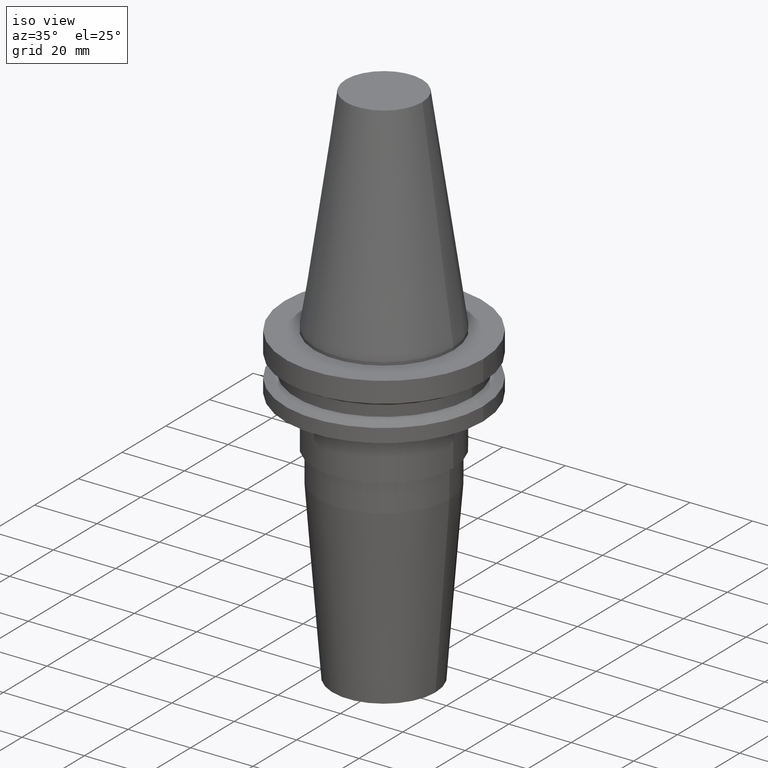
[diagram: clean part render]
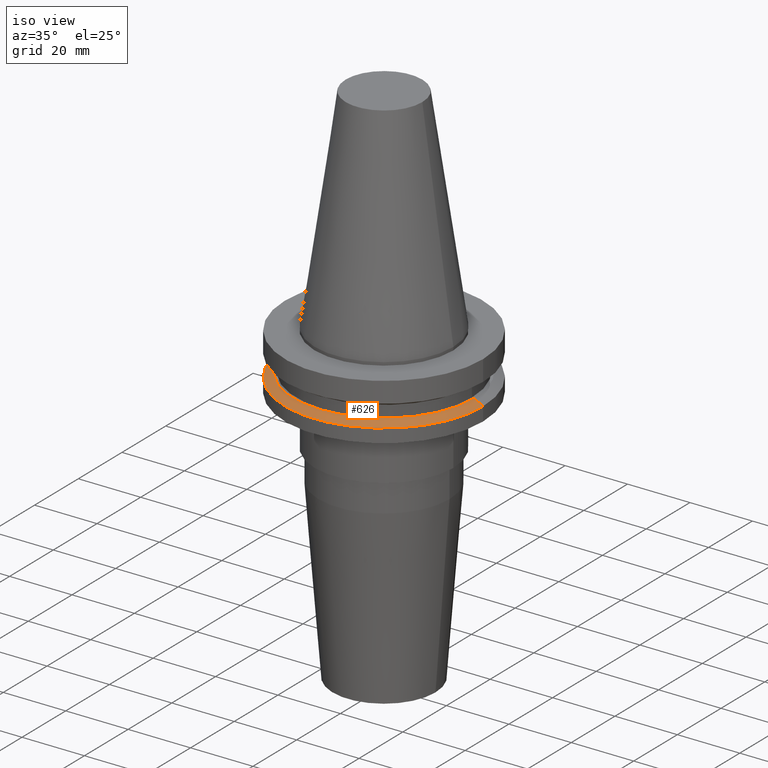
[diagram: same view with one face highlighted and labeled with its STEP entity id]
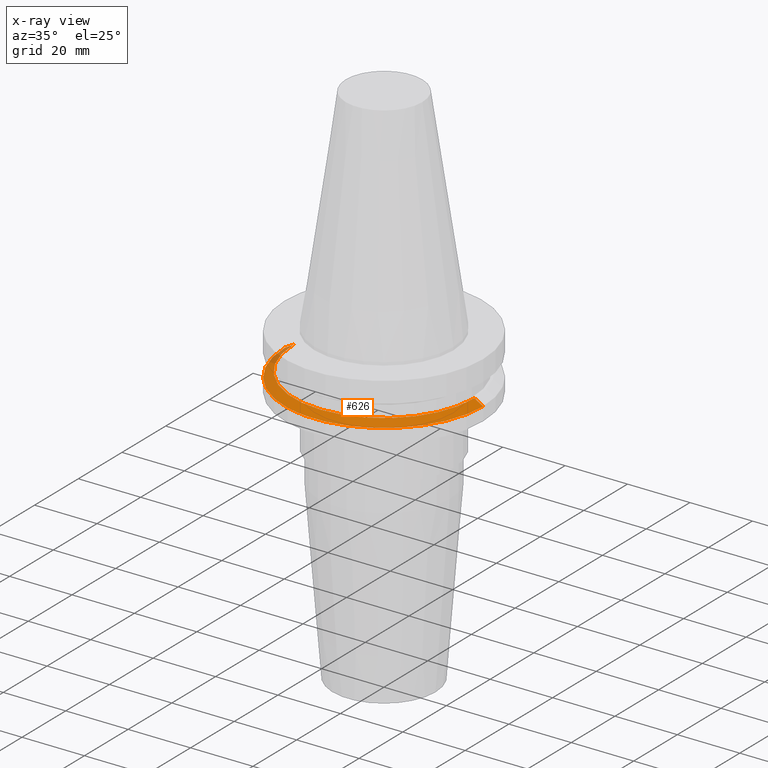
[diagram: x-ray of the same camera — body ghosted, the highlighted face saturated]
A machine part, iso view. The second image highlights one B-rep face of the part: STEP entity #626.
The next image is the same camera in x-ray: the body ghosted, the highlighted face saturated — about 4% of this face is hidden behind the body in this view.
In plain terms, the highlighted conical surface has half-angle 60 deg.
Its self-contained STEP definition (entity closure, byte-faithful):
#10 = DIRECTION ( 'NONE',  ( -0.000000000000000000, -0.000000000000000000, 1.000000000000000000 ) ) ;
#49 = EDGE_CURVE ( 'NONE', #105, #676, #651, .T. ) ;
#63 = CARTESIAN_POINT ( 'NONE',  ( 0.000000000000000000, 0.000000000000000000, -14.65472339340266572 ) ) ;
#89 = ORIENTED_EDGE ( 'NONE', *, *, #361, .F. ) ;
#105 = VERTEX_POINT ( 'NONE', #246 ) ;
#130 = CARTESIAN_POINT ( 'NONE',  ( 31.75000000000000000, 0.000000000000000000, -14.65472339340266572 ) ) ;
#139 = CARTESIAN_POINT ( 'NONE',  ( -31.75000000000000000, 3.888253587292846476E-15, -14.65472339340266572 ) ) ;
#151 = ORIENTED_EDGE ( 'NONE', *, *, #49, .F. ) ;
#161 = AXIS2_PLACEMENT_3D ( 'NONE', #847, #10, #339 ) ;
#165 = LINE ( 'NONE', #294, #807 ) ;
#201 = DIRECTION ( 'NONE',  ( 0.000000000000000000, 0.000000000000000000, -1.000000000000000000 ) ) ;
#246 = CARTESIAN_POINT ( 'NONE',  ( -28.97919780457008088, 0.000000000000000000, -13.05499999999999794 ) ) ;
#285 = DIRECTION ( 'NONE',  ( -1.000000000000000000, 0.000000000000000000, 0.000000000000000000 ) ) ;
#294 = CARTESIAN_POINT ( 'NONE',  ( 31.75000000000000000, 3.888253587292846476E-15, -14.65472339340266572 ) ) ;
#321 = ORIENTED_EDGE ( 'NONE', *, *, #817, .T. ) ;
#333 = FACE_OUTER_BOUND ( 'NONE', #351, .T. ) ;
#339 = DIRECTION ( 'NONE',  ( 1.000000000000000000, 0.000000000000000000, 0.000000000000000000 ) ) ;
#351 = EDGE_LOOP ( 'NONE', ( #89, #151, #321, #507 ) ) ;
#359 = VECTOR ( 'NONE', #647, 1000.000000000000000 ) ;
#361 = EDGE_CURVE ( 'NONE', #676, #761, #165, .T. ) ;
#474 = CONICAL_SURFACE ( 'NONE', #594, 31.75000000000000000, 1.047197551196597853 ) ;
#502 = AXIS2_PLACEMENT_3D ( 'NONE', #523, #656, #706 ) ;
#507 = ORIENTED_EDGE ( 'NONE', *, *, #642, .T. ) ;
#523 = CARTESIAN_POINT ( 'NONE',  ( 0.000000000000000000, 0.000000000000000000, -13.05499999999999794 ) ) ;
#526 = LINE ( 'NONE', #532, #359 ) ;
#532 = CARTESIAN_POINT ( 'NONE',  ( -31.75000000000000000, 0.000000000000000000, -14.65472339340266572 ) ) ;
#574 = CIRCLE ( 'NONE', #161, 31.75000000000000000 ) ;
#594 = AXIS2_PLACEMENT_3D ( 'NONE', #63, #201, #285 ) ;
#620 = VERTEX_POINT ( 'NONE', #139 ) ;
#626 = ADVANCED_FACE ( 'NONE', ( #333 ), #474, .T. ) ;
#642 = EDGE_CURVE ( 'NONE', #620, #761, #574, .T. ) ;
#647 = DIRECTION ( 'NONE',  ( -0.8660254037844387076, 0.000000000000000000, -0.4999999999999998890 ) ) ;
#651 = CIRCLE ( 'NONE', #502, 28.97919780457008088 ) ;
#656 = DIRECTION ( 'NONE',  ( -0.000000000000000000, -0.000000000000000000, 1.000000000000000000 ) ) ;
#674 = CARTESIAN_POINT ( 'NONE',  ( 28.97919780457008088, 3.718590885307660666E-15, -13.05499999999999794 ) ) ;
#676 = VERTEX_POINT ( 'NONE', #674 ) ;
#706 = DIRECTION ( 'NONE',  ( 1.000000000000000000, 0.000000000000000000, 0.000000000000000000 ) ) ;
#756 = DIRECTION ( 'NONE',  ( 0.8660254037844387076, 1.060575238724906915E-16, -0.4999999999999998890 ) ) ;
#761 = VERTEX_POINT ( 'NONE', #130 ) ;
#807 = VECTOR ( 'NONE', #756, 1000.000000000000000 ) ;
#817 = EDGE_CURVE ( 'NONE', #105, #620, #526, .T. ) ;
#847 = CARTESIAN_POINT ( 'NONE',  ( 0.000000000000000000, 0.000000000000000000, -14.65472339340266572 ) ) ;